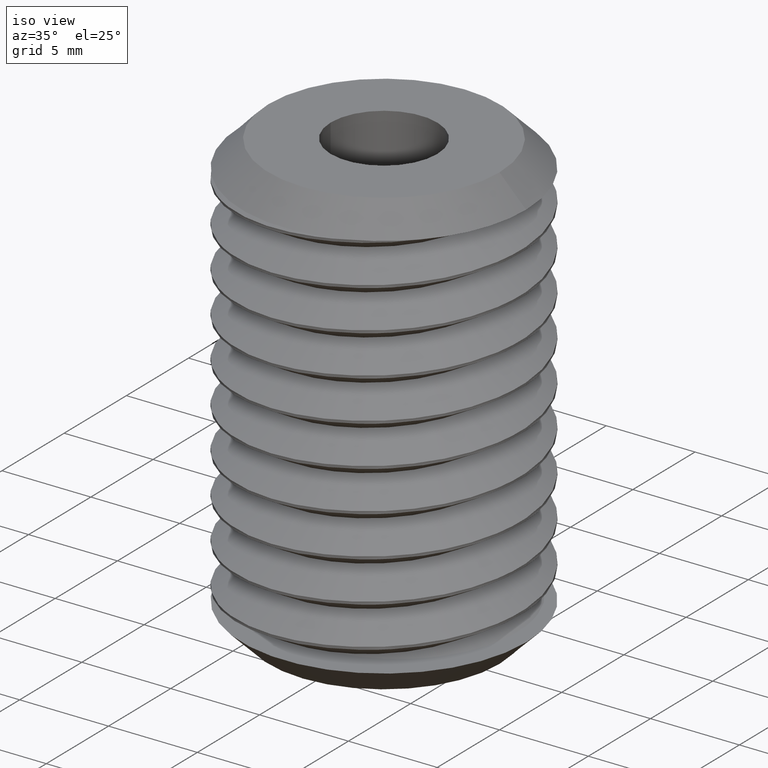
[diagram: clean part render]
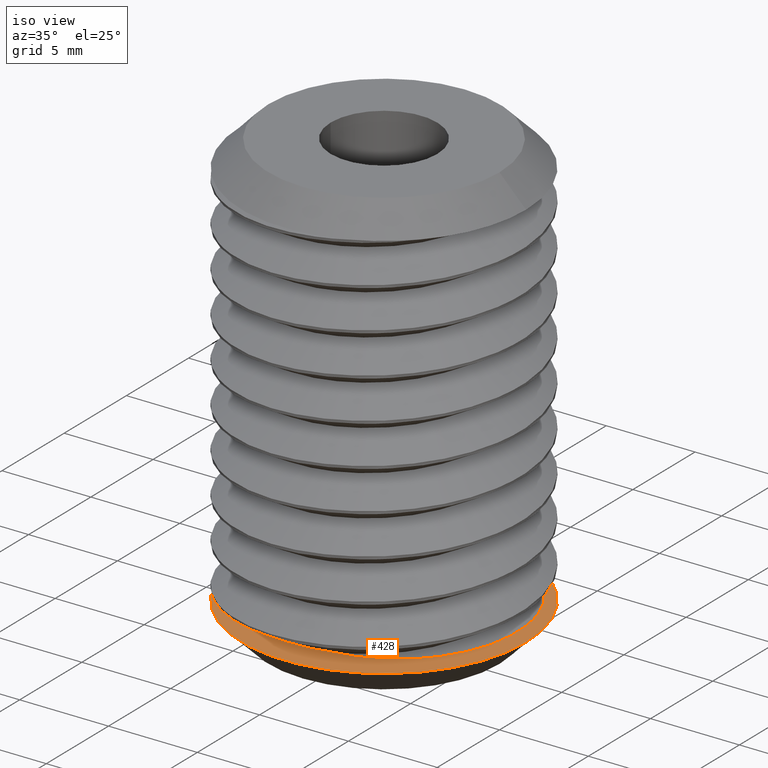
[diagram: same view with one face highlighted and labeled with its STEP entity id]
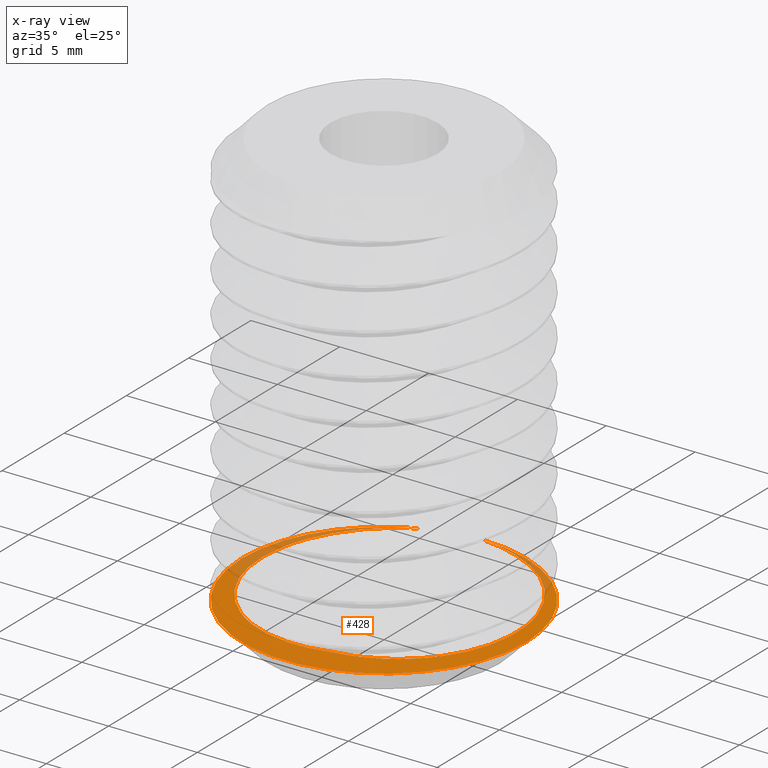
[diagram: x-ray of the same camera — body ghosted, the highlighted face saturated]
A machine part, iso view. The second image highlights one B-rep face of the part: STEP entity #428.
The next image is the same camera in x-ray: the body ghosted, the highlighted face saturated — about 16% of this face is hidden behind the body in this view.
In plain terms, the highlighted planar face has unit normal (0, 0, -1).
Its self-contained STEP definition (entity closure, byte-faithful):
#118 = AXIS2_PLACEMENT_3D ( 'NONE', #3289, #3290, #3291 ) ;
#137 = AXIS2_PLACEMENT_3D ( 'NONE', #2557, #2558, #2559 ) ;
#139 = AXIS2_PLACEMENT_3D ( 'NONE', #1799, #1800, #1801 ) ;
#428 = ADVANCED_FACE ( 'NONE', ( #1316 ), #3288, .F. ) ;
#460 = EDGE_CURVE ( 'NONE', #3424, #3415, #1986, .T. ) ;
#462 = EDGE_CURVE ( 'NONE', #3415, #3423, #1984, .T. ) ;
#466 = EDGE_CURVE ( 'NONE', #3429, #3430, #1235, .T. ) ;
#497 = AXIS2_PLACEMENT_3D ( 'NONE', #1805, #1806, #1807 ) ;
#1235 = CIRCLE ( 'NONE', #137, 7.999999999999923600 ) ;
#1239 = CIRCLE ( 'NONE', #139, 7.999999999999923600 ) ;
#1241 = CIRCLE ( 'NONE', #497, 7.999999999999923600 ) ;
#1316 = FACE_OUTER_BOUND ( 'NONE', #1405, .T. ) ;
#1353 = EDGE_CURVE ( 'NONE', #3430, #3423, #1239, .T. ) ;
#1355 = EDGE_CURVE ( 'NONE', #3424, #3429, #1241, .T. ) ;
#1405 = EDGE_LOOP ( 'NONE', ( #1442, #1441, #1440, #1439, #1438 ) ) ;
#1438 = ORIENTED_EDGE ( 'NONE', *, *, #462, .F. ) ;
#1439 = ORIENTED_EDGE ( 'NONE', *, *, #1353, .T. ) ;
#1440 = ORIENTED_EDGE ( 'NONE', *, *, #466, .T. ) ;
#1441 = ORIENTED_EDGE ( 'NONE', *, *, #1355, .T. ) ;
#1442 = ORIENTED_EDGE ( 'NONE', *, *, #460, .F. ) ;
#1799 = CARTESIAN_POINT ( 'NONE',  ( 0.0000000000000000000, 0.0000000000000000000, -23.50000000000007800 ) ) ;
#1800 = DIRECTION ( 'NONE',  ( 0.0000000000000000000, 0.0000000000000000000, 1.000000000000000000 ) ) ;
#1801 = DIRECTION ( 'NONE',  ( 1.000000000000000000, 0.0000000000000000000, 0.0000000000000000000 ) ) ;
#1805 = CARTESIAN_POINT ( 'NONE',  ( 0.0000000000000000000, 0.0000000000000000000, -23.50000000000007800 ) ) ;
#1806 = DIRECTION ( 'NONE',  ( 0.0000000000000000000, 0.0000000000000000000, 1.000000000000000000 ) ) ;
#1807 = DIRECTION ( 'NONE',  ( 1.000000000000000000, 0.0000000000000000000, 0.0000000000000000000 ) ) ;
#1984 = B_SPLINE_CURVE_WITH_KNOTS ( 'NONE', 3,
 ( #2468, #2469, #2470, #2471, #2472, #2473, #2474, #2475, #2476, #2477, #2478, #2479, #2480, #2481, #2482, #2483, #2484, #2485, #2486, #2487, #2488, #2489, #2490, #2491, #2492, #2493, #2494, #2495, #2496, #2497, #2498, #2499, #2500, #2501, #2502, #2503, #2504, #2505 ),
 .UNSPECIFIED., .F., .F.,
 ( 4, 2, 2, 2, 2, 2, 2, 2, 2, 2, 2, 2, 2, 2, 2, 2, 2, 2, 4 ),
 ( 0.0000000000000000000, 0.001302887331111221300, 0.002605774662222442600, 0.003908661993333662600, 0.005211549324444883500, 0.005862992990000492200, 0.006514436655556101800, 0.007817323986667323500, 0.009120211317778546100, 0.01042309864888976700, 0.01107454231444537700, 0.01172598598000098800, 0.01302887331111220900, 0.01433176064222343000, 0.01563464797333465100, 0.01693753530444587500, 0.01758897897000148400, 0.01824042263555709600, 0.02084619729777953700 ),
 .UNSPECIFIED. ) ;
#1986 = B_SPLINE_CURVE_WITH_KNOTS ( 'NONE', 3,
 ( #2401, #2402, #2403, #2404, #2405, #2406, #2407, #2408, #2409, #2410, #2411, #2412, #2413, #2414, #2415, #2416, #2417, #2418, #2419, #2420, #2421, #2422, #2423, #2424, #2425, #2426, #2427, #2428, #2429, #2430, #2431, #2432, #2433, #2434, #2435, #2436, #2437, #2438, #2439, #2440, #2441, #2442 ),
 .UNSPECIFIED., .F., .F.,
 ( 4, 2, 2, 2, 2, 2, 2, 2, 2, 2, 2, 2, 2, 2, 2, 2, 2, 2, 2, 2, 4 ),
 ( 0.0000000000000000000, 0.001301050221410277700, 0.002602100442820555400, 0.003903150664230833300, 0.005204200885641110800, 0.006505251107051389500, 0.007155776217756527200, 0.007806301328461666600, 0.009107351549871944500, 0.009757876660577083000, 0.01040840177128222200, 0.01170945199269250200, 0.01235997710339764200, 0.01301050221410277900, 0.01431155243551306000, 0.01561260265692334000, 0.01691365287833362200, 0.01756417798903876100, 0.01821470309974389600, 0.01951575332115417600, 0.02081680354256445300 ),
 .UNSPECIFIED. ) ;
#2079 = CARTESIAN_POINT ( 'NONE',  ( 1.199999935016873300, -6.014796585832177900, -23.50000000230353000 ) ) ;
#2087 = CARTESIAN_POINT ( 'NONE',  ( -0.05677574188515359400, 7.999798529658906300, -23.49999999805421800 ) ) ;
#2088 = CARTESIAN_POINT ( 'NONE',  ( -3.073659093911205600, 7.385974531124308100, -23.49999999919820200 ) ) ;
#2093 = CARTESIAN_POINT ( 'NONE',  ( -7.999999999999923600, 9.797174393178733000E-016, -23.50000000000007800 ) ) ;
#2094 = CARTESIAN_POINT ( 'NONE',  ( 7.999999999999923600, 0.0000000000000000000, -23.50000000000007800 ) ) ;
#2401 = CARTESIAN_POINT ( 'NONE',  ( -3.073659093911205600, 7.385974531124308100, -23.49999999919820200 ) ) ;
#2402 = CARTESIAN_POINT ( 'NONE',  ( -3.464715261174521600, 7.186925900435003500, -23.49999999999999600 ) ) ;
#2403 = CARTESIAN_POINT ( 'NONE',  ( -3.835683668616426600, 6.959957516900550100, -23.50000000000000000 ) ) ;
#2404 = CARTESIAN_POINT ( 'NONE',  ( -4.535452845854583100, 6.447412350534210500, -23.49999999999999600 ) ) ;
#2405 = CARTESIAN_POINT ( 'NONE',  ( -4.865583393295478800, 6.159257896517432100, -23.49999999999998600 ) ) ;
#2406 = CARTESIAN_POINT ( 'NONE',  ( -5.472436440671929200, 5.528486894277796700, -23.49999999999999600 ) ) ;
#2407 = CARTESIAN_POINT ( 'NONE',  ( -5.744702694949081600, 5.191194370208781300, -23.49999999999998600 ) ) ;
#2408 = CARTESIAN_POINT ( 'NONE',  ( -6.228986362248762500, 4.474251769553709400, -23.49999999999999300 ) ) ;
#2409 = CARTESIAN_POINT ( 'NONE',  ( -6.441861154817680700, 4.092668992392755300, -23.49999999999998900 ) ) ;
#2410 = CARTESIAN_POINT ( 'NONE',  ( -6.800284433210373800, 3.293128226237167500, -23.49999999999999600 ) ) ;
#2411 = CARTESIAN_POINT ( 'NONE',  ( -6.942639245828877900, 2.883209931964282100, -23.50000000000000400 ) ) ;
#2412 = CARTESIAN_POINT ( 'NONE',  ( -7.102767332550747000, 2.253628555316864000, -23.50000000000000700 ) ) ;
#2413 = CARTESIAN_POINT ( 'NONE',  ( -7.147192026338378100, 2.041303495916457300, -23.50000000000000700 ) ) ;
#2414 = CARTESIAN_POINT ( 'NONE',  ( -7.217851657873402400, 1.611645131802769400, -23.50000000000000400 ) ) ;
#2415 = CARTESIAN_POINT ( 'NONE',  ( -7.244148126207338800, 1.393252879351034600, -23.50000000000000000 ) ) ;
#2416 = CARTESIAN_POINT ( 'NONE',  ( -7.294158453703900600, 0.7388113678914940400, -23.50000000000000700 ) ) ;
#2417 = CARTESIAN_POINT ( 'NONE',  ( -7.290100224580569900, 0.3052239679596217600, -23.50000000000000700 ) ) ;
#2418 = CARTESIAN_POINT ( 'NONE',  ( -7.227046484503762100, -0.3410338410837548400, -23.50000000000000400 ) ) ;
#2419 = CARTESIAN_POINT ( 'NONE',  ( -7.195924145798879400, -0.5557217412689576800, -23.49999999999999300 ) ) ;
#2420 = CARTESIAN_POINT ( 'NONE',  ( -7.113034654828171100, -0.9836032471719437000, -23.49999999999999300 ) ) ;
#2421 = CARTESIAN_POINT ( 'NONE',  ( -7.060869542795435500, -1.197995386117507700, -23.50000000000000000 ) ) ;
#2422 = CARTESIAN_POINT ( 'NONE',  ( -6.875503394778037100, -1.827441138228127000, -23.50000000000000700 ) ) ;
#2423 = CARTESIAN_POINT ( 'NONE',  ( -6.714114885664026900, -2.229731067354350200, -23.50000000000000700 ) ) ;
#2424 = CARTESIAN_POINT ( 'NONE',  ( -6.416804291036495300, -2.807837875519481500, -23.50000000000000400 ) ) ;
#2425 = CARTESIAN_POINT ( 'NONE',  ( -6.308434828004816800, -2.996290687683981400, -23.50000000000001100 ) ) ;
#2426 = CARTESIAN_POINT ( 'NONE',  ( -6.072661863000169200, -3.364467094192327600, -23.50000000000000700 ) ) ;
#2427 = CARTESIAN_POINT ( 'NONE',  ( -5.944879749638868600, -3.544473078745546500, -23.50000000000000000 ) ) ;
#2428 = CARTESIAN_POINT ( 'NONE',  ( -5.541064680060362200, -4.059561287834337200, -23.49999999999999600 ) ) ;
#2429 = CARTESIAN_POINT ( 'NONE',  ( -5.242389579383593700, -4.374002167476792400, -23.50000000000000700 ) ) ;
#2430 = CARTESIAN_POINT ( 'NONE',  ( -4.586697833646083700, -4.945559708418703500, -23.50000000000001100 ) ) ;
#2431 = CARTESIAN_POINT ( 'NONE',  ( -4.226342782202499900, -5.203820950971216800, -23.50000000000000000 ) ) ;
#2432 = CARTESIAN_POINT ( 'NONE',  ( -3.475144628410745500, -5.640939013721580700, -23.50000000000000000 ) ) ;
#2433 = CARTESIAN_POINT ( 'NONE',  ( -3.082154377606134900, -5.823801223595901400, -23.50000000000000400 ) ) ;
#2434 = CARTESIAN_POINT ( 'NONE',  ( -2.461934638010705900, -6.035009717935420100, -23.50000000000000400 ) ) ;
#2435 = CARTESIAN_POINT ( 'NONE',  ( -2.248987599887613400, -6.095239826630593600, -23.50000000000000400 ) ) ;
#2436 = CARTESIAN_POINT ( 'NONE',  ( -1.822642118894274700, -6.191883466518169700, -23.50000000000000700 ) ) ;
#2437 = CARTESIAN_POINT ( 'NONE',  ( -1.608390857486622100, -6.228714568520210500, -23.49999999999999300 ) ) ;
#2438 = CARTESIAN_POINT ( 'NONE',  ( -0.9624757370298991900, -6.305526540571452000, -23.49999999999999600 ) ) ;
#2439 = CARTESIAN_POINT ( 'NONE',  ( -0.5269920496143946100, -6.312141159953593900, -23.50000000000000000 ) ) ;
#2440 = CARTESIAN_POINT ( 'NONE',  ( 0.3499457506905370700, -6.231824044678144300, -23.50000000000000400 ) ) ;
#2441 = CARTESIAN_POINT ( 'NONE',  ( 0.7794591646752349100, -6.146124381371728300, -23.50000000000001400 ) ) ;
#2442 = CARTESIAN_POINT ( 'NONE',  ( 1.199999935016873300, -6.014796585832177900, -23.50000000230353000 ) ) ;
#2468 = CARTESIAN_POINT ( 'NONE',  ( 1.199999935016873300, -6.014796585832177900, -23.50000000230353000 ) ) ;
#2469 = CARTESIAN_POINT ( 'NONE',  ( 1.638717517055482400, -5.974693007424207300, -23.49999999999999600 ) ) ;
#2470 = CARTESIAN_POINT ( 'NONE',  ( 2.064893209380383300, -5.887408264696356100, -23.50000000000003900 ) ) ;
#2471 = CARTESIAN_POINT ( 'NONE',  ( 2.893182764111852400, -5.622320801922592500, -23.50000000000003600 ) ) ;
#2472 = CARTESIAN_POINT ( 'NONE',  ( 3.298218766004145300, -5.440461655579941400, -23.49999999999999600 ) ) ;
#2473 = CARTESIAN_POINT ( 'NONE',  ( 4.055723725953250800, -5.007455488434400700, -23.50000000000000000 ) ) ;
#2474 = CARTESIAN_POINT ( 'NONE',  ( 4.411113594975759600, -4.755304090930403400, -23.49999999999999300 ) ) ;
#2475 = CARTESIAN_POINT ( 'NONE',  ( 5.074038276393062000, -4.177980686823431700, -23.49999999999999300 ) ) ;
#2476 = CARTESIAN_POINT ( 'NONE',  ( 5.373807671949268000, -3.859064979549502400, -23.50000000000000700 ) ) ;
#2477 = CARTESIAN_POINT ( 'NONE',  ( 5.771651920157030000, -3.343210006961794300, -23.50000000000001400 ) ) ;
#2478 = CARTESIAN_POINT ( 'NONE',  ( 5.895933350198357700, -3.164649641063577200, -23.49999999999999300 ) ) ;
#2479 = CARTESIAN_POINT ( 'NONE',  ( 6.127522776280880400, -2.794068189659225900, -23.50000000000000000 ) ) ;
#2480 = CARTESIAN_POINT ( 'NONE',  ( 6.235281287757636000, -2.600990038404921800, -23.49999999999999300 ) ) ;
#2481 = CARTESIAN_POINT ( 'NONE',  ( 6.526428718804228700, -2.012462039462666200, -23.49999999999999600 ) ) ;
#2482 = CARTESIAN_POINT ( 'NONE',  ( 6.679697379264529100, -1.605967367899170600, -23.49999999999999300 ) ) ;
#2483 = CARTESIAN_POINT ( 'NONE',  ( 6.906036431634271700, -0.7651987401051100200, -23.50000000000000400 ) ) ;
#2484 = CARTESIAN_POINT ( 'NONE',  ( 6.978124376504076100, -0.3272003788082416000, -23.49999999999999300 ) ) ;
#2485 = CARTESIAN_POINT ( 'NONE',  ( 7.036667905855803300, 0.5422856445448486200, -23.50000000000000400 ) ) ;
#2486 = CARTESIAN_POINT ( 'NONE',  ( 7.027256991961097700, 0.9772482186323056000, -23.50000000000000400 ) ) ;
#2487 = CARTESIAN_POINT ( 'NONE',  ( 6.954151672336413600, 1.630026900316067200, -23.50000000000000400 ) ) ;
#2488 = CARTESIAN_POINT ( 'NONE',  ( 6.919709959794900600, 1.848078598904048200, -23.50000000000000000 ) ) ;
#2489 = CARTESIAN_POINT ( 'NONE',  ( 6.832235905841903500, 2.276092386489763100, -23.50000000000000400 ) ) ;
#2490 = CARTESIAN_POINT ( 'NONE',  ( 6.779136094955822100, 2.487069308124055600, -23.50000000000000700 ) ) ;
#2491 = CARTESIAN_POINT ( 'NONE',  ( 6.592241206576768600, 3.111069666927253500, -23.50000000000001100 ) ) ;
#2492 = CARTESIAN_POINT ( 'NONE',  ( 6.431075079694754700, 3.515235320086556000, -23.49999999999999300 ) ) ;
#2493 = CARTESIAN_POINT ( 'NONE',  ( 6.032902466005231700, 4.299023266087663900, -23.49999999999999300 ) ) ;
#2494 = CARTESIAN_POINT ( 'NONE',  ( 5.800747953244466800, 4.668677820858136800, -23.50000000000000000 ) ) ;
#2495 = CARTESIAN_POINT ( 'NONE',  ( 5.276215750908231300, 5.359943637911601200, -23.49999999999999600 ) ) ;
#2496 = CARTESIAN_POINT ( 'NONE',  ( 4.982060077782891000, 5.683680715328848400, -23.50000000000000400 ) ) ;
#2497 = CARTESIAN_POINT ( 'NONE',  ( 4.335060915047685100, 6.277709387159403900, -23.50000000000000400 ) ) ;
#2498 = CARTESIAN_POINT ( 'NONE',  ( 3.988953365425089300, 6.541089699775904300, -23.50000000000000400 ) ) ;
#2499 = CARTESIAN_POINT ( 'NONE',  ( 3.439479631415510500, 6.891064197297651200, -23.50000000000000000 ) ) ;
#2500 = CARTESIAN_POINT ( 'NONE',  ( 3.251384911127411600, 7.000377839940657800, -23.50000000000001400 ) ) ;
#2501 = CARTESIAN_POINT ( 'NONE',  ( 2.865154744567149200, 7.204067471038797500, -23.50000000000001100 ) ) ;
#2502 = CARTESIAN_POINT ( 'NONE',  ( 2.666077512767270500, 7.298805918317762900, -23.50000000000000400 ) ) ;
#2503 = CARTESIAN_POINT ( 'NONE',  ( 1.660301985007940400, 7.727468993491392300, -23.50000000000000700 ) ) ;
#2504 = CARTESIAN_POINT ( 'NONE',  ( 0.8199300574799200900, 7.933300237566765400, -23.50000000000000700 ) ) ;
#2505 = CARTESIAN_POINT ( 'NONE',  ( -0.05677574188515359400, 7.999798529658906300, -23.49999999805421800 ) ) ;
#2557 = CARTESIAN_POINT ( 'NONE',  ( 0.0000000000000000000, 0.0000000000000000000, -23.50000000000007800 ) ) ;
#2558 = DIRECTION ( 'NONE',  ( 0.0000000000000000000, 0.0000000000000000000, 1.000000000000000000 ) ) ;
#2559 = DIRECTION ( 'NONE',  ( 1.000000000000000000, 0.0000000000000000000, 0.0000000000000000000 ) ) ;
#3288 = PLANE ( 'NONE',  #118 ) ;
#3289 = CARTESIAN_POINT ( 'NONE',  ( 8.096000000000000100, -8.096000000000000100, -23.50000000000000000 ) ) ;
#3290 = DIRECTION ( 'NONE',  ( 0.0000000000000000000, 0.0000000000000000000, -1.000000000000000000 ) ) ;
#3291 = DIRECTION ( 'NONE',  ( -1.000000000000000000, 0.0000000000000000000, 0.0000000000000000000 ) ) ;
#3415 = VERTEX_POINT ( 'NONE', #2079 ) ;
#3423 = VERTEX_POINT ( 'NONE', #2087 ) ;
#3424 = VERTEX_POINT ( 'NONE', #2088 ) ;
#3429 = VERTEX_POINT ( 'NONE', #2093 ) ;
#3430 = VERTEX_POINT ( 'NONE', #2094 ) ;